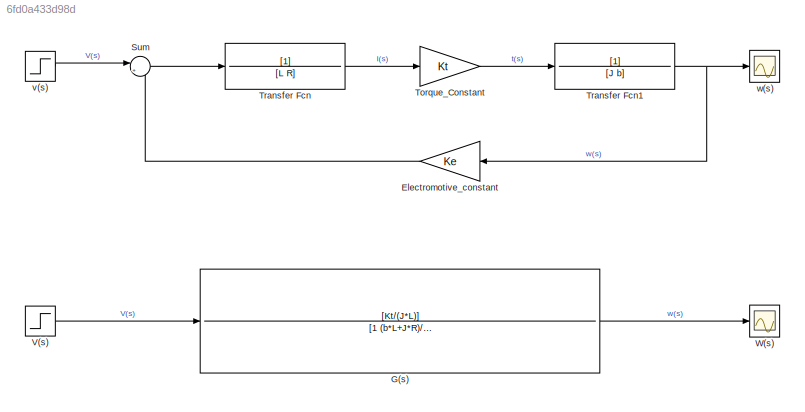
MODEL slx_6fd0a433d98d
KIND model
CONFIG AbsTol = auto
CONFIG EnableMultiTasking = off
CONFIG FixedStep = auto
CONFIG MaxStep = auto
CONFIG MinStep = auto
CONFIG RelTol = 1e-3
CONFIG SampleTimeConstraint = Unconstrained
CONFIG SolverName = VariableStepAuto
CONFIG StartTime = 0.0
CONFIG StopTime = 10
BLOCK [Gain] Electromotive_constant
  Gain = Ke
  NameLocation = top
BLOCK [TransferFcn] G(s)
  Denominator = [1 (b*L+J*R)/(J*L) (b*R+Kt*Ke)/(J*L)]
  Numerator = [Kt/(J*L)]
BLOCK [Sum] Sum
  Inputs = |++
BLOCK [Gain] Torque_Constant
  Gain = Kt
BLOCK [TransferFcn] Transfer Fcn
  Denominator = [L R]
BLOCK [TransferFcn] Transfer Fcn1
  Denominator = [J b]
BLOCK [Step] V(s)
  After = 346
  SampleTime = T
  Time = T
BLOCK [Scope] W(s)
  Floating = off
  NumInputPorts = 1
  ScopeSpecificationString = Simulink.scopes.TimeScopeBlockCfg('CurrentConfiguration', extmgr.ConfigurationSet(extmgr.Configuration('Core','General UI',true),extmgr.Configuration('Core','Source UI',true),extmgr.Configuration('Sources','WiredSimulink',true,'DataLoggingVariableName','ScopeData2'),extmgr.Configuration('Visuals','Time Domain',true,'SerializedDisplays',{struct('MinYLimReal','-0.18968','MaxYLimReal','1.60312','YLab...<+1382ch>
BLOCK [Step] v(s)
  After = 346
  SampleTime = T
  Time = T
BLOCK [Scope] w(s)
  Floating = off
  NumInputPorts = 1
  ScopeSpecificationString = Simulink.scopes.TimeScopeBlockCfg('CurrentConfiguration', extmgr.ConfigurationSet(extmgr.Configuration('Core','General UI',true),extmgr.Configuration('Core','Source UI',true),extmgr.Configuration('Sources','WiredSimulink',true),extmgr.Configuration('Visuals','Time Domain',true,'SerializedDisplays',{struct('MinYLimReal','0.01609','MaxYLimReal','1.71103','YLabelReal','','MinYLimMag','0.01609','MaxYL...<+1341ch>
LINE Electromotive_constant:1 -> Sum:2
LINE G(s):1 -> W(s):1
LINE Sum:1 -> Transfer Fcn:1
LINE Torque_Constant:1 -> Transfer Fcn1:1
NET Transfer Fcn1:1 -> Electromotive_constant:1, w(s):1
LINE Transfer Fcn:1 -> Torque_Constant:1
LINE V(s):1 -> G(s):1
LINE v(s):1 -> Sum:1
note: NET lines group one-source signal fan-out (src -> all destinations, sorted); 1:1 wires keep LINE
